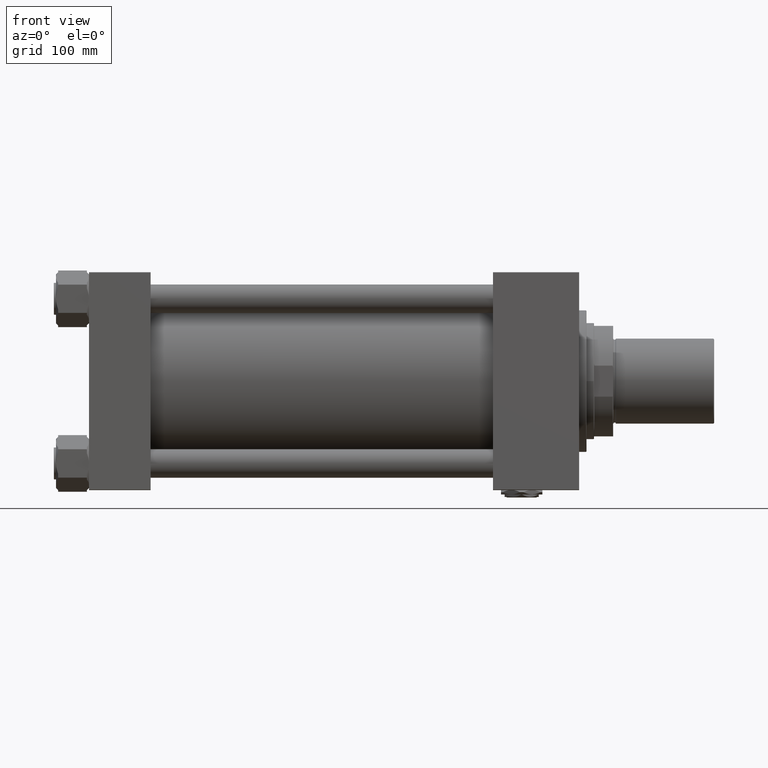
[diagram: clean part render]
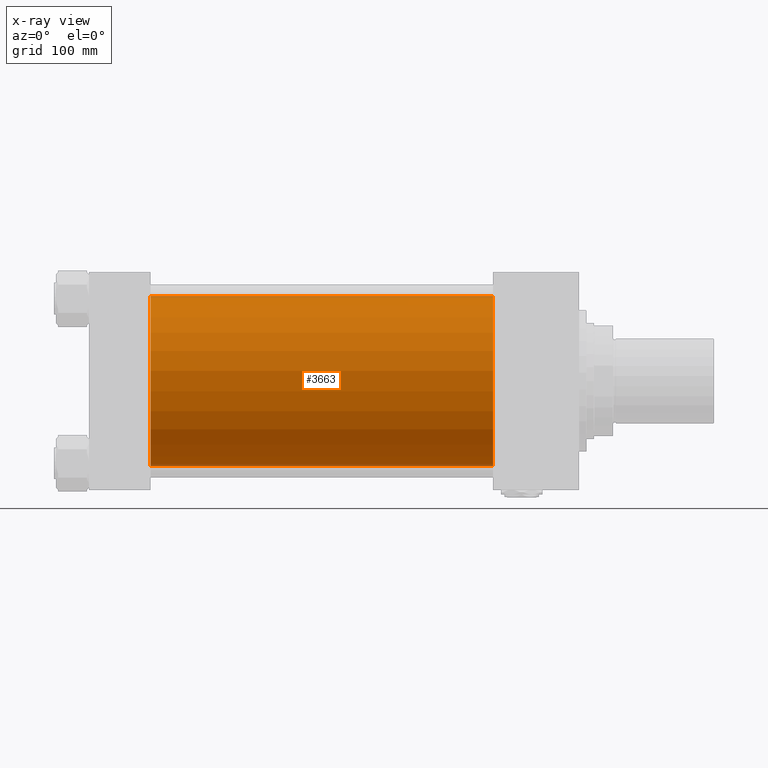
[diagram: x-ray — body ghosted, one internal face saturated and labeled with its STEP entity id]
A machine part, front view, then the same camera in x-ray: the body is ghosted and one INTERNAL B-rep face — a face not visible from any outside direction — is saturated and labeled: STEP entity #3663.
In plain terms, the highlighted cylindrical surface (partial cylindrical patch) has radius 80 mm, axis along (-1, -0, -0).
Its self-contained STEP definition (entity closure, byte-faithful):
#1537 = EDGE_CURVE ( 'NONE', #51732, #36199, #20618, .T. ) ;
#1685 = EDGE_CURVE ( 'NONE', #9140, #36199, #22757, .T. ) ;
#3663 = ADVANCED_FACE ( 'NONE', ( #7719 ), #43614, .F. ) ;
#3910 = DIRECTION ( 'NONE',  ( -1.000000000000000000, -0.000000000000000000, -0.000000000000000000 ) ) ;
#4826 = CARTESIAN_POINT ( 'NONE',  ( 380.0000000000000000, 7.195089179213615410E-15, -80.00000000000000000 ) ) ;
#7719 = FACE_OUTER_BOUND ( 'NONE', #15113, .T. ) ;
#8637 = AXIS2_PLACEMENT_3D ( 'NONE', #41815, #37268, #37807 ) ;
#9140 = VERTEX_POINT ( 'NONE', #20893 ) ;
#13839 = VECTOR ( 'NONE', #3910, 1000.000000000000000 ) ;
#15113 = EDGE_LOOP ( 'NONE', ( #22985, #30728, #43830, #51805 ) ) ;
#18315 = CARTESIAN_POINT ( 'NONE',  ( 58.00000000000000000, 7.195089179213615410E-15, -80.00000000000000000 ) ) ;
#18555 = AXIS2_PLACEMENT_3D ( 'NONE', #36370, #28045, #44412 ) ;
#18836 = EDGE_CURVE ( 'NONE', #37058, #9140, #19677, .T. ) ;
#19141 = CARTESIAN_POINT ( 'NONE',  ( 380.0000000000000000, -2.602085213965210642E-15, 80.00000000000000000 ) ) ;
#19677 = LINE ( 'NONE', #19141, #13839 ) ;
#20618 = LINE ( 'NONE', #4826, #30553 ) ;
#20893 = CARTESIAN_POINT ( 'NONE',  ( 58.00000000000000000, -2.602085213965210642E-15, 80.00000000000000000 ) ) ;
#21409 = EDGE_CURVE ( 'NONE', #37058, #51732, #42019, .T. ) ;
#22757 = CIRCLE ( 'NONE', #39875, 80.00000000000000000 ) ;
#22964 = DIRECTION ( 'NONE',  ( 1.000000000000000000, 0.000000000000000000, 0.000000000000000000 ) ) ;
#22985 = ORIENTED_EDGE ( 'NONE', *, *, #21409, .T. ) ;
#28045 = DIRECTION ( 'NONE',  ( -1.000000000000000000, -0.000000000000000000, -0.000000000000000000 ) ) ;
#28073 = CARTESIAN_POINT ( 'NONE',  ( 380.0000000000000000, 7.195089179213615410E-15, -80.00000000000000000 ) ) ;
#30200 = CARTESIAN_POINT ( 'NONE',  ( 380.0000000000000000, -2.602085213965210642E-15, 80.00000000000000000 ) ) ;
#30553 = VECTOR ( 'NONE', #44484, 1000.000000000000000 ) ;
#30728 = ORIENTED_EDGE ( 'NONE', *, *, #1537, .T. ) ;
#31808 = CARTESIAN_POINT ( 'NONE',  ( 58.00000000000000000, -2.602085213965210642E-15, 0.000000000000000000 ) ) ;
#36199 = VERTEX_POINT ( 'NONE', #18315 ) ;
#36370 = CARTESIAN_POINT ( 'NONE',  ( 380.0000000000000000, -2.602085213965210642E-15, 0.000000000000000000 ) ) ;
#37058 = VERTEX_POINT ( 'NONE', #30200 ) ;
#37268 = DIRECTION ( 'NONE',  ( 1.000000000000000000, 0.000000000000000000, 0.000000000000000000 ) ) ;
#37807 = DIRECTION ( 'NONE',  ( 0.000000000000000000, 0.000000000000000000, -1.000000000000000000 ) ) ;
#39332 = DIRECTION ( 'NONE',  ( 0.000000000000000000, 0.000000000000000000, -1.000000000000000000 ) ) ;
#39875 = AXIS2_PLACEMENT_3D ( 'NONE', #31808, #22964, #39332 ) ;
#41815 = CARTESIAN_POINT ( 'NONE',  ( 380.0000000000000000, -2.602085213965210642E-15, 0.000000000000000000 ) ) ;
#42019 = CIRCLE ( 'NONE', #8637, 80.00000000000000000 ) ;
#43614 = CYLINDRICAL_SURFACE ( 'NONE', #18555, 80.00000000000000000 ) ;
#43830 = ORIENTED_EDGE ( 'NONE', *, *, #1685, .F. ) ;
#44412 = DIRECTION ( 'NONE',  ( 0.000000000000000000, 0.000000000000000000, 1.000000000000000000 ) ) ;
#44484 = DIRECTION ( 'NONE',  ( -1.000000000000000000, -0.000000000000000000, -0.000000000000000000 ) ) ;
#51732 = VERTEX_POINT ( 'NONE', #28073 ) ;
#51805 = ORIENTED_EDGE ( 'NONE', *, *, #18836, .F. ) ;